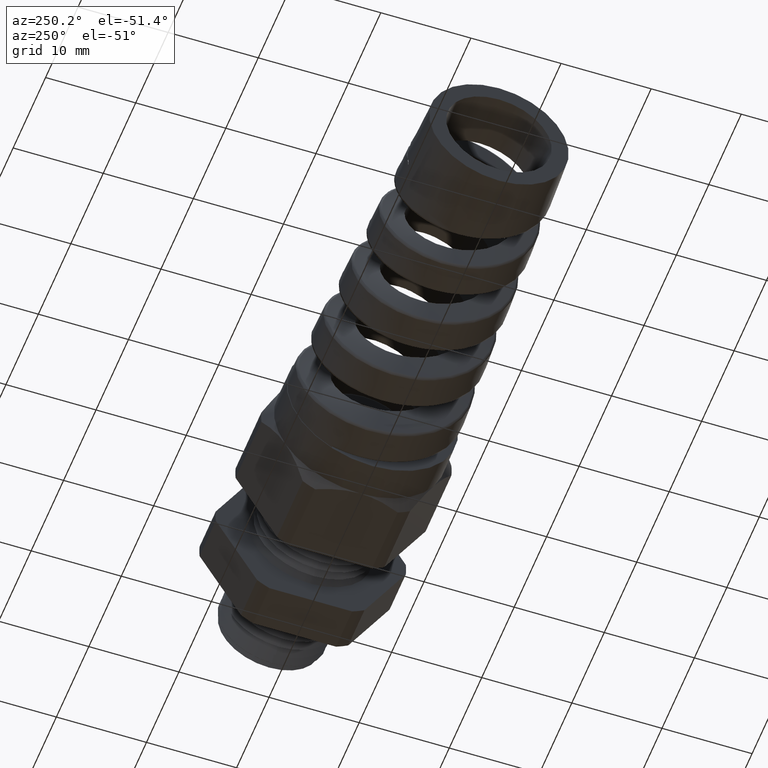
[diagram: clean part render]
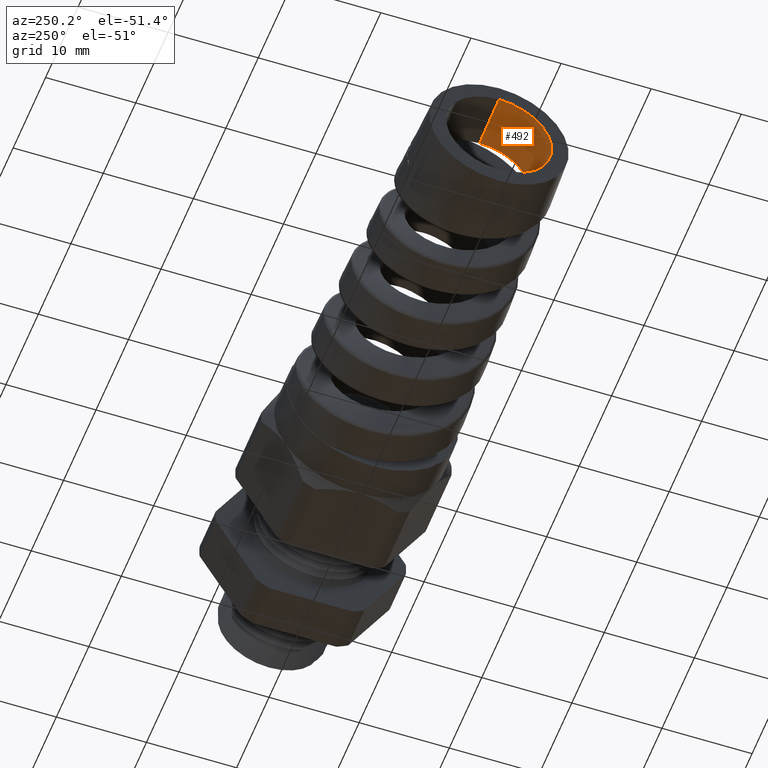
[diagram: same view with one face highlighted and labeled with its STEP entity id]
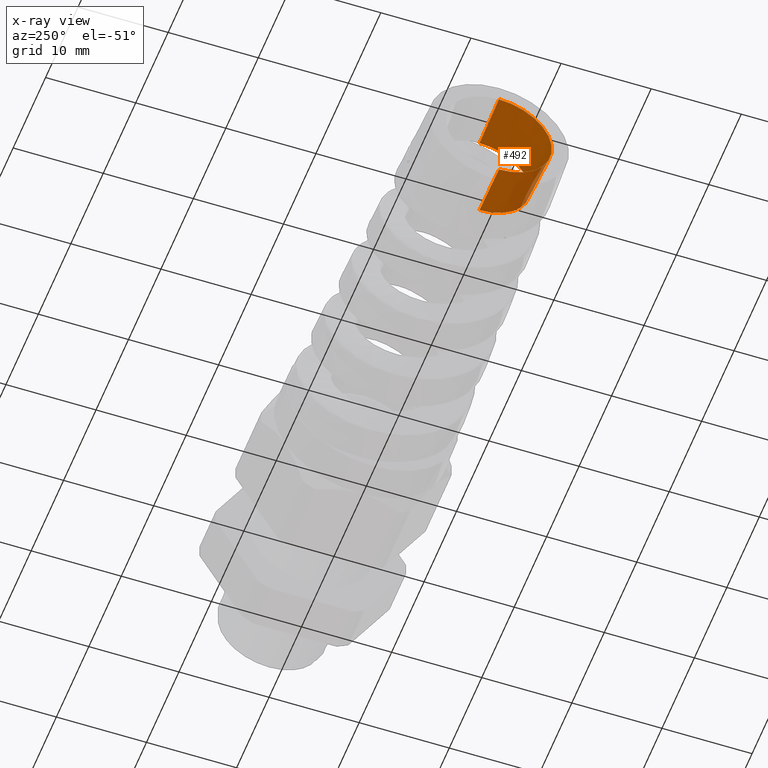
[diagram: x-ray of the same camera — body ghosted, the highlighted face saturated]
A machine part, auxiliary view. The second image highlights one B-rep face of the part: STEP entity #492.
The next image is the same camera in x-ray: the body ghosted, the highlighted face saturated — about 0% of this face is hidden behind the body in this view.
In plain terms, the highlighted conical surface has half-angle 2.5 deg.
Its self-contained STEP definition (entity closure, byte-faithful):
#492 = ADVANCED_FACE ( 'NONE', ( #1517 ), #1514, .F. ) ;
#493 = EDGE_LOOP ( 'NONE', ( #540, #542, #541, #552, #559 ) ) ;
#538 = VERTEX_POINT ( 'NONE', #1590 ) ;
#539 = VERTEX_POINT ( 'NONE', #1653 ) ;
#540 = ORIENTED_EDGE ( 'NONE', *, *, #550, .T. ) ;
#541 = ORIENTED_EDGE ( 'NONE', *, *, #546, .T. ) ;
#542 = ORIENTED_EDGE ( 'NONE', *, *, #551, .T. ) ;
#543 = VERTEX_POINT ( 'NONE', #1652 ) ;
#544 = EDGE_CURVE ( 'NONE', #545, #543, #1651, .T. ) ;
#545 = VERTEX_POINT ( 'NONE', #1647 ) ;
#546 = EDGE_CURVE ( 'NONE', #547, #543, #1646, .T. ) ;
#547 = VERTEX_POINT ( 'NONE', #1641 ) ;
#548 = EDGE_CURVE ( 'NONE', #538, #545, #1640, .T. ) ;
#550 = EDGE_CURVE ( 'NONE', #538, #539, #1633, .T. ) ;
#551 = EDGE_CURVE ( 'NONE', #539, #547, #1623, .T. ) ;
#552 = ORIENTED_EDGE ( 'NONE', *, *, #544, .F. ) ;
#559 = ORIENTED_EDGE ( 'NONE', *, *, #548, .F. ) ;
#860 = DIRECTION ( 'NONE',  ( -0.9990482215818576900, 5.341834311772734800E-018, -0.04361938736533609700 ) ) ;
#1501 = DIRECTION ( 'NONE',  ( 0.0000000000000000000, 0.0000000000000000000, 1.000000000000000000 ) ) ;
#1502 = DIRECTION ( 'NONE',  ( -1.000000000000000000, 0.0000000000000000000, 0.0000000000000000000 ) ) ;
#1503 = CARTESIAN_POINT ( 'NONE',  ( -2.553780000000000200, 0.0000000000000000000, 0.0000000000000000000 ) ) ;
#1504 = AXIS2_PLACEMENT_3D ( 'NONE', #1503, #1502, #1501 ) ;
#1514 = CONICAL_SURFACE ( 'NONE', #1504, 0.2204999999999999500, 0.04363323129985833400 ) ;
#1517 = FACE_OUTER_BOUND ( 'NONE', #493, .T. ) ;
#1590 = CARTESIAN_POINT ( 'NONE',  ( -2.553780000000000200, -0.2201397739083057700, 0.01259880722925707700 ) ) ;
#1621 = VECTOR ( 'NONE', #860, 39.37007874015748100 ) ;
#1622 = CARTESIAN_POINT ( 'NONE',  ( -2.553780000000000200, 2.700346192119913100E-017, -0.2204999999999999500 ) ) ;
#1623 = LINE ( 'NONE', #1622, #1621 ) ;
#1625 = DIRECTION ( 'NONE',  ( 0.0000000000000000000, 0.0000000000000000000, -1.000000000000000000 ) ) ;
#1626 = DIRECTION ( 'NONE',  ( 1.000000000000000000, 0.0000000000000000000, 0.0000000000000000000 ) ) ;
#1627 = CARTESIAN_POINT ( 'NONE',  ( -2.553780000000000200, 0.0000000000000000000, 0.0000000000000000000 ) ) ;
#1628 = AXIS2_PLACEMENT_3D ( 'NONE', #1627, #1626, #1625 ) ;
#1633 = CIRCLE ( 'NONE', #1628, 0.2204999999999998400 ) ;
#1636 = DIRECTION ( 'NONE',  ( 0.0000000000000000000, 0.0000000000000000000, 1.000000000000000000 ) ) ;
#1637 = DIRECTION ( 'NONE',  ( -1.000000000000000000, 0.0000000000000000000, 0.0000000000000000000 ) ) ;
#1638 = CARTESIAN_POINT ( 'NONE',  ( -2.553780000000000200, 0.0000000000000000000, 0.0000000000000000000 ) ) ;
#1639 = AXIS2_PLACEMENT_3D ( 'NONE', #1638, #1637, #1636 ) ;
#1640 = CIRCLE ( 'NONE', #1639, 0.2204999999999999500 ) ;
#1641 = CARTESIAN_POINT ( 'NONE',  ( -2.790000472440945100, 2.826651469239593600E-017, -0.2308136085610658100 ) ) ;
#1642 = DIRECTION ( 'NONE',  ( 0.0000000000000000000, 0.0000000000000000000, 1.000000000000000000 ) ) ;
#1643 = DIRECTION ( 'NONE',  ( -1.000000000000000000, 0.0000000000000000000, 0.0000000000000000000 ) ) ;
#1644 = CARTESIAN_POINT ( 'NONE',  ( -2.790000472440945100, 0.0000000000000000000, 0.0000000000000000000 ) ) ;
#1645 = AXIS2_PLACEMENT_3D ( 'NONE', #1644, #1643, #1642 ) ;
#1646 = CIRCLE ( 'NONE', #1645, 0.2308136085610657800 ) ;
#1647 = CARTESIAN_POINT ( 'NONE',  ( -2.553780000000000200, 0.0000000000000000000, 0.2204999999999999500 ) ) ;
#1648 = DIRECTION ( 'NONE',  ( -0.9990482215818576900, 0.0000000000000000000, 0.04361938736533609700 ) ) ;
#1649 = VECTOR ( 'NONE', #1648, 39.37007874015748100 ) ;
#1650 = CARTESIAN_POINT ( 'NONE',  ( -2.553780000000000200, 0.0000000000000000000, 0.2204999999999999500 ) ) ;
#1651 = LINE ( 'NONE', #1650, #1649 ) ;
#1652 = CARTESIAN_POINT ( 'NONE',  ( -2.790000472440945100, 0.0000000000000000000, 0.2308136085610658100 ) ) ;
#1653 = CARTESIAN_POINT ( 'NONE',  ( -2.553780000000000200, 0.0000000000000000000, -0.2204999999999998400 ) ) ;